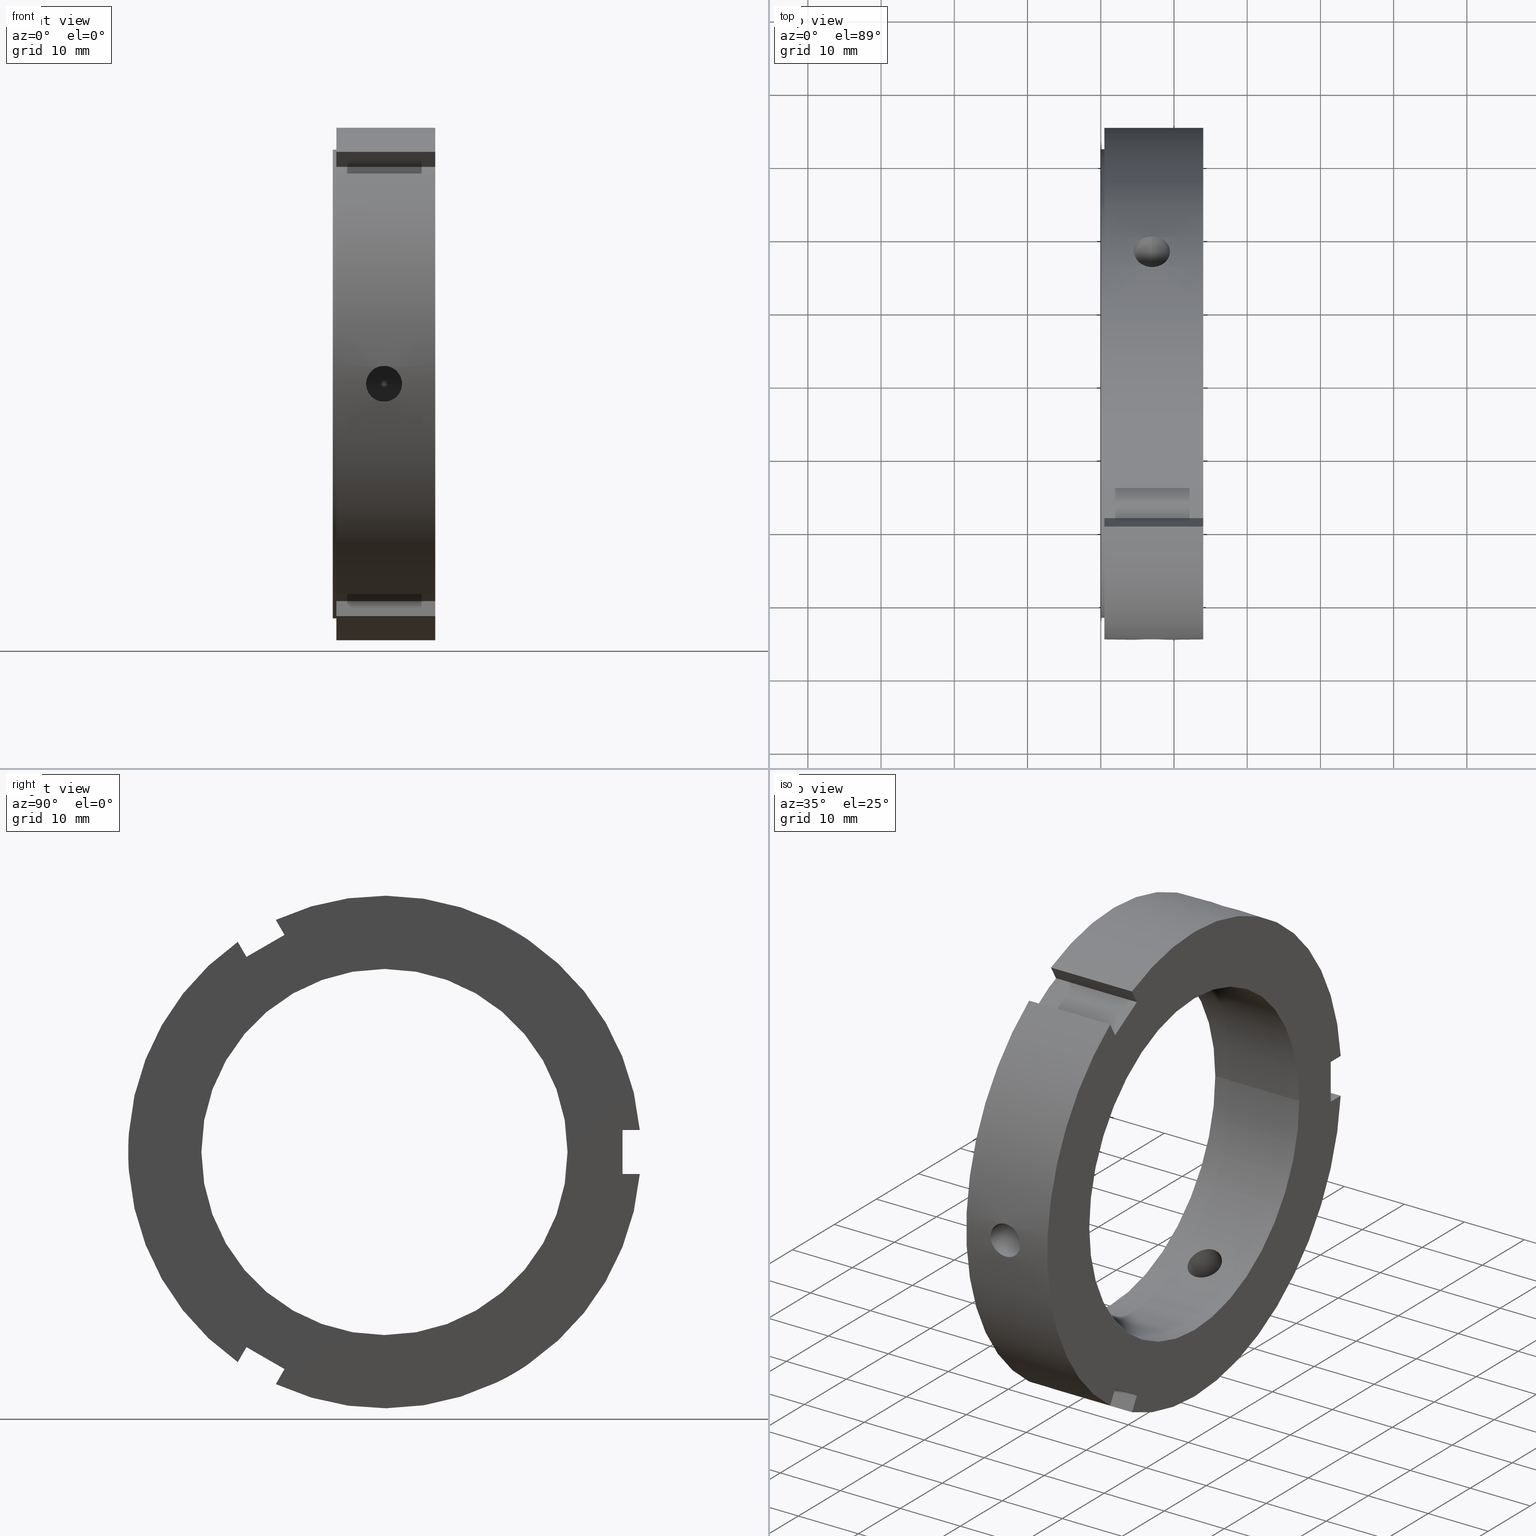
[diagram: canonical four-view strip — front | top / right | iso, engineering-drawing reading convention]
A machine part, canonical four-view strip (front | top / right | iso — engineering-drawing reading convention). The complete STEP part file that produces these views, byte-faithful:
ISO-10303-21;
HEADER;
/****************************************************************
 * Generated by software with PDE/Lib inside                    *
 * PDElib Version v51a, created Thu 01/14/2010                  *
 * ITI Transcendata (http://www.transcendata.com/)              *
 ****************************************************************/
FILE_DESCRIPTION((''),'2;1');
FILE_NAME('\\\\CAD-SVN\\cad-svn\\\X2\628088538AB2\X0\\\FKD\X2\88FD4F5C\X0\SP\\\X2\90E854C130E930A430D630E930EA\X0\\\HP \X2\30A230C330D730C730FC30C87528\X0\CAD\X2\30C730FC30BFFF0867007D42FF09\X0\\\3D data\\ZMT\\FKD ZMT 50.stp','2014-07-16T14:45:56',('fkd-ct1n'),(''),'Autodesk Inventor 2011','Autodesk Inventor 2011','');
FILE_SCHEMA(('AUTOMOTIVE_DESIGN { 1 0 10303 214 1 1 1 1 }'));
ENDSEC;
DATA;
#5=APPLICATION_CONTEXT('automotive design');
#6=APPLICATION_PROTOCOL_DEFINITION('International Standard','automotive_design',2001,#5);
#7=PRODUCT_CONTEXT('',#5,'mechanical');
#8=PRODUCT('FKD ZMT 50','FKD ZMT 50',$,(#7));
#9=PRODUCT_RELATED_PRODUCT_CATEGORY('part',$,(#8));
#10=PRODUCT_DEFINITION_FORMATION('',$,#8);
#11=PRODUCT_DEFINITION_CONTEXT('part definition',#5,'design');
#12=PRODUCT_DEFINITION('',$,#10,#11);
#18=(NAMED_UNIT(*)PLANE_ANGLE_UNIT()SI_UNIT($,.RADIAN.));
#19=DIMENSIONAL_EXPONENTS(0.0,0.0,0.0,0.0,0.0,0.0,0.0);
#20=PLANE_ANGLE_MEASURE_WITH_UNIT(PLANE_ANGLE_MEASURE(0.017453292500000),#18);
#24=(CONVERSION_BASED_UNIT('DEGREE',#20)NAMED_UNIT(#19)PLANE_ANGLE_UNIT());
#28=(NAMED_UNIT(*)SI_UNIT($,.STERADIAN.)SOLID_ANGLE_UNIT());
#32=(LENGTH_UNIT()NAMED_UNIT(*)SI_UNIT(.MILLI.,.METRE.));
#34=UNCERTAINTY_MEASURE_WITH_UNIT(LENGTH_MEASURE(0.010000000000000),#32,'DISTANCE_ACCURACY_VALUE','');
#36=(GEOMETRIC_REPRESENTATION_CONTEXT(3)GLOBAL_UNCERTAINTY_ASSIGNED_CONTEXT((#34))GLOBAL_UNIT_ASSIGNED_CONTEXT((#24,#28,#32))REPRESENTATION_CONTEXT('None','None'));
#37=AXIS2_PLACEMENT_3D('',#38,#39,#40);
#38=CARTESIAN_POINT('',(0.0,0.0,0.0));
#39=DIRECTION('',(0.0,0.0,1.0));
#40=DIRECTION('',(1.0,0.0,0.0));
#41=SHAPE_REPRESENTATION('',(#37),#36);
#42=PRODUCT_DEFINITION_SHAPE('','',#12);
#43=SHAPE_DEFINITION_REPRESENTATION(#42,#41);
#49=(NAMED_UNIT(*)PLANE_ANGLE_UNIT()SI_UNIT($,.RADIAN.));
#50=DIMENSIONAL_EXPONENTS(0.0,0.0,0.0,0.0,0.0,0.0,0.0);
#51=PLANE_ANGLE_MEASURE_WITH_UNIT(PLANE_ANGLE_MEASURE(0.017453292500000),#49);
#55=(CONVERSION_BASED_UNIT('DEGREE',#51)NAMED_UNIT(#50)PLANE_ANGLE_UNIT());
#59=(NAMED_UNIT(*)SI_UNIT($,.STERADIAN.)SOLID_ANGLE_UNIT());
#63=(LENGTH_UNIT()NAMED_UNIT(*)SI_UNIT(.MILLI.,.METRE.));
#65=UNCERTAINTY_MEASURE_WITH_UNIT(LENGTH_MEASURE(0.000001000000000),#63,'DISTANCE_ACCURACY_VALUE','');
#67=(GEOMETRIC_REPRESENTATION_CONTEXT(3)GLOBAL_UNCERTAINTY_ASSIGNED_CONTEXT((#65))GLOBAL_UNIT_ASSIGNED_CONTEXT((#55,#59,#63))REPRESENTATION_CONTEXT('','3D'));
#68=CARTESIAN_POINT('',(13.999999999999995,-18.848076211353334,-26.645825622994252));
#69=DIRECTION('',(0.0,-0.866025403784438,0.500000000000001));
#70=DIRECTION('',(-1.0,0.0,0.0));
#71=AXIS2_PLACEMENT_3D('',#68,#69,#70);
#72=PLANE('',#71);
#73=CARTESIAN_POINT('',(0.499999999999994,-18.848076211353334,-26.645825622994252));
#74=VERTEX_POINT('',#73);
#75=CARTESIAN_POINT('',(0.499999999999994,-20.033671985516026,-28.699337741082989));
#76=VERTEX_POINT('',#75);
#77=CARTESIAN_POINT('',(0.499999999999992,-18.848076211353344,-26.645825622994252));
#78=DIRECTION('',(0.0,-0.500000000000000,-0.866025403784439));
#79=VECTOR('',#78,2.371191548325385);
#80=LINE('',#77,#79);
#81=EDGE_CURVE('',#74,#76,#80,.T.);
#82=ORIENTED_EDGE('',*,*,#81,.F.);
#83=CARTESIAN_POINT('',(13.999999999999995,-18.848076211353334,-26.645825622994252));
#84=VERTEX_POINT('',#83);
#85=CARTESIAN_POINT('',(13.999999999999995,-18.848076211353334,-26.645825622994252));
#86=DIRECTION('',(-1.0,0.0,0.0));
#87=VECTOR('',#86,13.500000000000000);
#88=LINE('',#85,#87);
#89=EDGE_CURVE('',#84,#74,#88,.T.);
#90=ORIENTED_EDGE('',*,*,#89,.F.);
#91=CARTESIAN_POINT('',(13.999999999999995,-20.033671985516023,-28.699337741082989));
#92=VERTEX_POINT('',#91);
#93=CARTESIAN_POINT('',(13.999999999999995,-20.033671985516033,-28.699337741082992));
#94=DIRECTION('',(0.0,0.500000000000001,0.866025403784438));
#95=VECTOR('',#94,2.371191548325382);
#96=LINE('',#93,#95);
#97=EDGE_CURVE('',#92,#84,#96,.T.);
#98=ORIENTED_EDGE('',*,*,#97,.F.);
#99=CARTESIAN_POINT('',(0.499999999999994,-20.033671985516026,-28.699337741082989));
#100=DIRECTION('',(1.0,0.0,0.0));
#101=VECTOR('',#100,13.500000000000000);
#102=LINE('',#99,#101);
#103=EDGE_CURVE('',#76,#92,#102,.T.);
#104=ORIENTED_EDGE('',*,*,#103,.F.);
#105=EDGE_LOOP('',(#82,#90,#98,#104));
#106=FACE_OUTER_BOUND('',#105,.T.);
#107=ADVANCED_FACE('',(#106),#72,.F.);
#108=CARTESIAN_POINT('',(13.999999999999995,-14.901923788646700,-31.810889132455348));
#109=DIRECTION('',(0.0,0.866025403784438,-0.500000000000001));
#110=DIRECTION('',(1.0,0.0,0.0));
#111=AXIS2_PLACEMENT_3D('',#108,#109,#110);
#112=PLANE('',#111);
#113=CARTESIAN_POINT('',(0.499999999999994,-14.837519562809396,-31.699337741082985));
#114=VERTEX_POINT('',#113);
#115=CARTESIAN_POINT('',(0.499999999999994,-13.651923788646702,-29.645825622994252));
#116=VERTEX_POINT('',#115);
#117=CARTESIAN_POINT('',(0.499999999999992,-14.837519562809396,-31.699337741082992));
#118=DIRECTION('',(0.0,0.500000000000001,0.866025403784438));
#119=VECTOR('',#118,2.371191548325378);
#120=LINE('',#117,#119);
#121=EDGE_CURVE('',#114,#116,#120,.T.);
#122=ORIENTED_EDGE('',*,*,#121,.F.);
#123=CARTESIAN_POINT('',(13.999999999999995,-14.837519562809396,-31.699337741082985));
#124=VERTEX_POINT('',#123);
#125=CARTESIAN_POINT('',(13.999999999999995,-14.837519562809391,-31.699337741082985));
#126=DIRECTION('',(-1.0,0.0,0.0));
#127=VECTOR('',#126,13.500000000000000);
#128=LINE('',#125,#127);
#129=EDGE_CURVE('',#124,#114,#128,.T.);
#130=ORIENTED_EDGE('',*,*,#129,.F.);
#131=CARTESIAN_POINT('',(13.999999999999995,-13.651923788646702,-29.645825622994252));
#132=VERTEX_POINT('',#131);
#133=CARTESIAN_POINT('',(13.999999999999995,-13.651923788646709,-29.645825622994259));
#134=DIRECTION('',(0.0,-0.500000000000000,-0.866025403784439));
#135=VECTOR('',#134,2.371191548325377);
#136=LINE('',#133,#135);
#137=EDGE_CURVE('',#132,#124,#136,.T.);
#138=ORIENTED_EDGE('',*,*,#137,.F.);
#139=CARTESIAN_POINT('',(13.999999999999995,-13.651923788646702,-29.645825622994252));
#140=DIRECTION('',(-1.0,0.0,0.0));
#141=VECTOR('',#140,13.500000000000000);
#142=LINE('',#139,#141);
#143=EDGE_CURVE('',#132,#116,#142,.T.);
#144=ORIENTED_EDGE('',*,*,#143,.T.);
#145=EDGE_LOOP('',(#122,#130,#138,#144));
#146=FACE_OUTER_BOUND('',#145,.T.);
#147=ADVANCED_FACE('',(#146),#112,.F.);
#148=CARTESIAN_POINT('',(13.999999999999995,-13.651923788646702,-29.645825622994252));
#149=DIRECTION('',(0.0,0.500000000000001,0.866025403784438));
#150=DIRECTION('',(0.0,-0.866025403784438,0.500000000000000));
#151=AXIS2_PLACEMENT_3D('',#148,#149,#150);
#152=PLANE('',#151);
#153=CARTESIAN_POINT('',(0.499999999999992,-13.651923788646709,-29.645825622994259));
#154=DIRECTION('',(0.0,-0.866025403784438,0.500000000000001));
#155=VECTOR('',#154,6.000000000000007);
#156=LINE('',#153,#155);
#157=EDGE_CURVE('',#116,#74,#156,.T.);
#158=ORIENTED_EDGE('',*,*,#157,.F.);
#159=ORIENTED_EDGE('',*,*,#143,.F.);
#160=CARTESIAN_POINT('',(13.999999999999995,-18.848076211353337,-26.645825622994245));
#161=DIRECTION('',(0.0,0.866025403784438,-0.500000000000001));
#162=VECTOR('',#161,6.0);
#163=LINE('',#160,#162);
#164=EDGE_CURVE('',#84,#132,#163,.T.);
#165=ORIENTED_EDGE('',*,*,#164,.F.);
#166=ORIENTED_EDGE('',*,*,#89,.T.);
#167=EDGE_LOOP('',(#158,#159,#165,#166));
#168=FACE_OUTER_BOUND('',#167,.T.);
#169=ADVANCED_FACE('',(#168),#152,.F.);
#170=CARTESIAN_POINT('',(6.999999999999994,49.944928191916532,86.507153208778519));
#171=DIRECTION('',(0.0,-0.500000000000001,-0.866025403784438));
#172=DIRECTION('',(-1.0,0.0,0.0));
#173=AXIS2_PLACEMENT_3D('',#170,#171,#172);
#174=CYLINDRICAL_SURFACE('',#173,2.458500000000000);
#175=CARTESIAN_POINT('',(6.999999999999994,19.585897052793616,29.006768807252044));
#176=VERTEX_POINT('',#175);
#177=CARTESIAN_POINT('',(6.999999999999994,19.585897052793612,29.006768807252051));
#178=CARTESIAN_POINT('',(7.308803977342721,19.585897052793612,29.006768807252051));
#179=CARTESIAN_POINT('',(7.638121638273501,19.534692012485525,29.041549822606125));
#180=CARTESIAN_POINT('',(8.243815084881787,19.325538974395474,29.181147191928112));
#181=CARTESIAN_POINT('',(8.520199516624384,19.167477861900046,29.285756456822813));
#182=CARTESIAN_POINT('',(8.956644346498578,18.800357879557588,29.522775654680274));
#183=CARTESIAN_POINT('',(9.145834056158357,18.566777503740248,29.670971599935317));
#184=CARTESIAN_POINT('',(9.396764694186135,18.050376288814480,29.987925876739482));
#185=CARTESIAN_POINT('',(9.458499999999994,17.767431868613340,30.156487271121549));
#186=CARTESIAN_POINT('',(9.458499999999994,17.232568131386664,30.465290993789147));
#187=CARTESIAN_POINT('',(9.396764694186130,16.945117471653898,30.626047352351357));
#188=CARTESIAN_POINT('',(9.145834056158348,16.412426408640489,30.914786784620134));
#189=CARTESIAN_POINT('',(8.956644346498578,16.167294767403103,31.042975351275945));
#190=CARTESIAN_POINT('',(8.520199516624388,15.778470129702702,31.242400983292676));
#191=CARTESIAN_POINT('',(8.243815084881785,15.608845292584965,31.326981289616796));
#192=CARTESIAN_POINT('',(7.638121638273500,15.383373905405621,31.438314449220478));
#193=CARTESIAN_POINT('',(7.308803977342721,15.327650142385528,31.465268807252048));
#194=CARTESIAN_POINT('',(6.691196022657268,15.327650142385528,31.465268807252048));
#195=CARTESIAN_POINT('',(6.361878361726489,15.383373905405621,31.438314449220478));
#196=CARTESIAN_POINT('',(5.756184915118203,15.608845292584965,31.326981289616796));
#197=CARTESIAN_POINT('',(5.479800483375601,15.778470129702702,31.242400983292676));
#198=CARTESIAN_POINT('',(5.043355653501410,16.167294767403103,31.042975351275945));
#199=CARTESIAN_POINT('',(4.854165943841641,16.412426408640489,30.914786784620134));
#200=CARTESIAN_POINT('',(4.603235305813859,16.945117471653898,30.626047352351357));
#201=CARTESIAN_POINT('',(4.541499999999995,17.232568131386664,30.465290993789147));
#202=CARTESIAN_POINT('',(4.541499999999993,17.767431868613343,30.156487271121556));
#203=CARTESIAN_POINT('',(4.603235305813854,18.050376288814480,29.987925876739482));
#204=CARTESIAN_POINT('',(4.854165943841634,18.566777503740248,29.670971599935314));
#205=CARTESIAN_POINT('',(5.043355653501407,18.800357879557591,29.522775654680274));
#206=CARTESIAN_POINT('',(5.479800483375604,19.167477861900046,29.285756456822813));
#207=CARTESIAN_POINT('',(5.756184915118205,19.325538974395474,29.181147191928112));
#208=CARTESIAN_POINT('',(6.361878361726491,19.534692012485525,29.041549822606125));
#209=CARTESIAN_POINT('',(6.691196022657268,19.585897052793612,29.006768807252051));
#210=CARTESIAN_POINT('',(6.999999999999993,19.585897052793612,29.006768807252051));
#211=B_SPLINE_CURVE_WITH_KNOTS('',3,(#177,#178,#179,#180,#181,#182,#183,#184,#185,#186,#187,#188,#189,#190,#191,#192,#193,#194,#195,#196,#197,#198,#199,#200,#201,#202,#203,#204,#205,#206,#207,#208,#209,#210),.UNSPECIFIED.,.T.,.U.,(4,2,2,2,2,2,2,2,2,2,2,2,2,2,2,2,4),(0.0,0.092641193202818,0.185282386405636,0.277923503205914,0.370564620006192,0.463205736806469,0.555846853606746,0.648488046809564,0.741129240012382,0.833770433215200,0.926411626418018,1.019052743218295,1.111693860018572,1.204334976818850,1.296976093619128,1.389617286821946,1.482258480024764),.UNSPECIFIED.);
#212=EDGE_CURVE('',#176,#176,#211,.T.);
#213=ORIENTED_EDGE('',*,*,#212,.F.);
#214=EDGE_LOOP('',(#213));
#215=FACE_OUTER_BOUND('',#214,.T.);
#216=CARTESIAN_POINT('',(6.999999999999994,14.568534391317547,20.316441757576492));
#217=VERTEX_POINT('',#216);
#218=CARTESIAN_POINT('',(6.999999999999994,14.568534391317542,20.316441757576499));
#219=CARTESIAN_POINT('',(6.691090431283149,14.568534391317542,20.316441757576499));
#220=CARTESIAN_POINT('',(6.361727701216430,14.518207455927437,20.352826061121981));
#221=CARTESIAN_POINT('',(5.756063616292427,14.312316190844285,20.498133612463860));
#222=CARTESIAN_POINT('',(5.479745178387740,14.156594499062209,20.606762491561817));
#223=CARTESIAN_POINT('',(5.043411472797827,13.793925879390478,20.851269427159327));
#224=CARTESIAN_POINT('',(4.854237550732051,13.562716952188858,21.003441303081626));
#225=CARTESIAN_POINT('',(4.603276304131247,13.049603551336270,21.326033031212393));
#226=CARTESIAN_POINT('',(4.541499999999994,12.767522682632960,21.496180801778486));
#227=CARTESIAN_POINT('',(4.541499999999994,12.232477317367049,21.805089387443424));
#228=CARTESIAN_POINT('',(4.603276304131247,11.944084591307863,21.964304700379028));
#229=CARTESIAN_POINT('',(4.854237550732051,11.408155259269606,22.247378076474217));
#230=CARTESIAN_POINT('',(5.043411472797825,11.160766085378553,22.371524943051412));
#231=CARTESIAN_POINT('',(5.479745178387736,10.767682557913755,22.563351713043815));
#232=CARTESIAN_POINT('',(5.756063616292424,10.595746343139263,22.643896214498401));
#233=CARTESIAN_POINT('',(6.361727701216424,10.366960679773909,22.749549504806787));
#234=CARTESIAN_POINT('',(6.691090431283149,10.310287480909462,22.774941757576499));
#235=CARTESIAN_POINT('',(7.308909568716839,10.310287480909462,22.774941757576499));
#236=CARTESIAN_POINT('',(7.638272298783562,10.366960679773909,22.749549504806787));
#237=CARTESIAN_POINT('',(8.243936383707561,10.595746343139263,22.643896214498401));
#238=CARTESIAN_POINT('',(8.520254821612252,10.767682557913755,22.563351713043815));
#239=CARTESIAN_POINT('',(8.956588527202163,11.160766085378555,22.371524943051412));
#240=CARTESIAN_POINT('',(9.145762449267938,11.408155259269607,22.247378076474217));
#241=CARTESIAN_POINT('',(9.396723695868744,11.944084591307867,21.964304700379028));
#242=CARTESIAN_POINT('',(9.458499999999994,12.232477317367049,21.805089387443424));
#243=CARTESIAN_POINT('',(9.458499999999994,12.767522682632961,21.496180801778490));
#244=CARTESIAN_POINT('',(9.396723695868740,13.049603551336267,21.326033031212390));
#245=CARTESIAN_POINT('',(9.145762449267934,13.562716952188856,21.003441303081622));
#246=CARTESIAN_POINT('',(8.956588527202161,13.793925879390478,20.851269427159327));
#247=CARTESIAN_POINT('',(8.520254821612248,14.156594499062209,20.606762491561817));
#248=CARTESIAN_POINT('',(8.243936383707561,14.312316190844285,20.498133612463860));
#249=CARTESIAN_POINT('',(7.638272298783559,14.518207455927437,20.352826061121981));
#250=CARTESIAN_POINT('',(7.308909568716839,14.568534391317542,20.316441757576492));
#251=CARTESIAN_POINT('',(6.999999999999994,14.568534391317542,20.316441757576492));
#252=B_SPLINE_CURVE_WITH_KNOTS('',3,(#218,#219,#220,#221,#222,#223,#224,#225,#226,#227,#228,#229,#230,#231,#232,#233,#234,#235,#236,#237,#238,#239,#240,#241,#242,#243,#244,#245,#246,#247,#248,#249,#250,#251),.UNSPECIFIED.,.T.,.U.,(4,2,2,2,2,2,2,2,2,2,2,2,2,2,2,2,4),(0.0,0.092672870615054,0.185345741230107,0.278018316929588,0.370690892629069,0.463363468328549,0.556036044028029,0.648708914643083,0.741381785258136,0.834054655873190,0.926727526488244,1.019400102187724,1.112072677887205,1.204745253586685,1.297417829286166,1.390090699901220,1.482763570516273),.UNSPECIFIED.);
#253=EDGE_CURVE('',#217,#217,#252,.T.);
#254=ORIENTED_EDGE('',*,*,#253,.F.);
#255=EDGE_LOOP('',(#254));
#256=FACE_BOUND('',#255,.T.);
#257=ADVANCED_FACE('',(#215,#256),#174,.F.);
#258=CARTESIAN_POINT('',(13.999999999999995,-13.651923788646680,29.645825622994263));
#259=DIRECTION('',(0.0,0.866025403784439,0.500000000000000));
#260=DIRECTION('',(-1.0,0.0,0.0));
#261=AXIS2_PLACEMENT_3D('',#258,#259,#260);
#262=PLANE('',#261);
#263=CARTESIAN_POINT('',(0.499999999999994,-13.651923788646680,29.645825622994263));
#264=VERTEX_POINT('',#263);
#265=CARTESIAN_POINT('',(0.499999999999994,-14.837519562809369,31.699337741082999));
#266=VERTEX_POINT('',#265);
#267=CARTESIAN_POINT('',(0.499999999999993,-13.651923788646680,29.645825622994263));
#268=DIRECTION('',(0.0,-0.500000000000001,0.866025403784438));
#269=VECTOR('',#268,2.371191548325382);
#270=LINE('',#267,#269);
#271=EDGE_CURVE('',#264,#266,#270,.T.);
#272=ORIENTED_EDGE('',*,*,#271,.F.);
#273=CARTESIAN_POINT('',(13.999999999999995,-13.651923788646680,29.645825622994263));
#274=VERTEX_POINT('',#273);
#275=CARTESIAN_POINT('',(13.999999999999995,-13.651923788646680,29.645825622994263));
#276=DIRECTION('',(-1.0,0.0,0.0));
#277=VECTOR('',#276,13.500000000000000);
#278=LINE('',#275,#277);
#279=EDGE_CURVE('',#274,#264,#278,.T.);
#280=ORIENTED_EDGE('',*,*,#279,.F.);
#281=CARTESIAN_POINT('',(13.999999999999995,-14.837519562809371,31.699337741082999));
#282=VERTEX_POINT('',#281);
#283=CARTESIAN_POINT('',(13.999999999999995,-14.837519562809373,31.699337741083010));
#284=DIRECTION('',(0.0,0.499999999999999,-0.866025403784439));
#285=VECTOR('',#284,2.371191548325388);
#286=LINE('',#283,#285);
#287=EDGE_CURVE('',#282,#274,#286,.T.);
#288=ORIENTED_EDGE('',*,*,#287,.F.);
#289=CARTESIAN_POINT('',(0.499999999999994,-14.837519562809369,31.699337741082996));
#290=DIRECTION('',(1.0,0.0,0.0));
#291=VECTOR('',#290,13.500000000000000);
#292=LINE('',#289,#291);
#293=EDGE_CURVE('',#266,#282,#292,.T.);
#294=ORIENTED_EDGE('',*,*,#293,.F.);
#295=EDGE_LOOP('',(#272,#280,#288,#294));
#296=FACE_OUTER_BOUND('',#295,.T.);
#297=ADVANCED_FACE('',(#296),#262,.F.);
#298=CARTESIAN_POINT('',(13.999999999999995,-20.098076211353309,28.810889132455358));
#299=DIRECTION('',(0.0,-0.866025403784439,-0.500000000000000));
#300=DIRECTION('',(1.0,0.0,0.0));
#301=AXIS2_PLACEMENT_3D('',#298,#299,#300);
#302=PLANE('',#301);
#303=CARTESIAN_POINT('',(0.499999999999994,-20.033671985516001,28.699337741083003));
#304=VERTEX_POINT('',#303);
#305=CARTESIAN_POINT('',(0.499999999999994,-18.848076211353309,26.645825622994263));
#306=VERTEX_POINT('',#305);
#307=CARTESIAN_POINT('',(0.499999999999993,-20.033671985516008,28.699337741082999));
#308=DIRECTION('',(0.0,0.500000000000001,-0.866025403784438));
#309=VECTOR('',#308,2.371191548325382);
#310=LINE('',#307,#309);
#311=EDGE_CURVE('',#304,#306,#310,.T.);
#312=ORIENTED_EDGE('',*,*,#311,.F.);
#313=CARTESIAN_POINT('',(13.999999999999995,-20.033671985516001,28.699337741083003));
#314=VERTEX_POINT('',#313);
#315=CARTESIAN_POINT('',(13.999999999999995,-20.033671985516005,28.699337741083003));
#316=DIRECTION('',(-1.0,0.0,0.0));
#317=VECTOR('',#316,13.500000000000000);
#318=LINE('',#315,#317);
#319=EDGE_CURVE('',#314,#304,#318,.T.);
#320=ORIENTED_EDGE('',*,*,#319,.F.);
#321=CARTESIAN_POINT('',(13.999999999999995,-18.848076211353309,26.645825622994263));
#322=VERTEX_POINT('',#321);
#323=CARTESIAN_POINT('',(13.999999999999995,-18.848076211353316,26.645825622994263));
#324=DIRECTION('',(0.0,-0.499999999999999,0.866025403784439));
#325=VECTOR('',#324,2.371191548325388);
#326=LINE('',#323,#325);
#327=EDGE_CURVE('',#322,#314,#326,.T.);
#328=ORIENTED_EDGE('',*,*,#327,.F.);
#329=CARTESIAN_POINT('',(13.999999999999995,-18.848076211353309,26.645825622994263));
#330=DIRECTION('',(-1.0,0.0,0.0));
#331=VECTOR('',#330,13.500000000000000);
#332=LINE('',#329,#331);
#333=EDGE_CURVE('',#322,#306,#332,.T.);
#334=ORIENTED_EDGE('',*,*,#333,.T.);
#335=EDGE_LOOP('',(#312,#320,#328,#334));
#336=FACE_OUTER_BOUND('',#335,.T.);
#337=ADVANCED_FACE('',(#336),#302,.F.);
#338=CARTESIAN_POINT('',(13.999999999999995,-18.848076211353309,26.645825622994263));
#339=DIRECTION('',(0.0,0.500000000000000,-0.866025403784439));
#340=DIRECTION('',(0.0,0.866025403784439,0.500000000000000));
#341=AXIS2_PLACEMENT_3D('',#338,#339,#340);
#342=PLANE('',#341);
#343=CARTESIAN_POINT('',(0.499999999999993,-18.848076211353316,26.645825622994266));
#344=DIRECTION('',(0.0,0.866025403784439,0.500000000000000));
#345=VECTOR('',#344,5.999999999999998);
#346=LINE('',#343,#345);
#347=EDGE_CURVE('',#306,#264,#346,.T.);
#348=ORIENTED_EDGE('',*,*,#347,.F.);
#349=ORIENTED_EDGE('',*,*,#333,.F.);
#350=CARTESIAN_POINT('',(13.999999999999995,-13.651923788646680,29.645825622994259));
#351=DIRECTION('',(0.0,-0.866025403784439,-0.500000000000000));
#352=VECTOR('',#351,5.999999999999998);
#353=LINE('',#350,#352);
#354=EDGE_CURVE('',#274,#322,#353,.T.);
#355=ORIENTED_EDGE('',*,*,#354,.F.);
#356=ORIENTED_EDGE('',*,*,#279,.T.);
#357=EDGE_LOOP('',(#348,#349,#355,#356));
#358=FACE_OUTER_BOUND('',#357,.T.);
#359=ADVANCED_FACE('',(#358),#342,.F.);
#360=CARTESIAN_POINT('',(6.999999999999994,49.944928191916475,-86.507153208778561));
#361=DIRECTION('',(0.0,-0.500000000000000,0.866025403784439));
#362=DIRECTION('',(-1.0,0.0,0.0));
#363=AXIS2_PLACEMENT_3D('',#360,#361,#362);
#364=CYLINDRICAL_SURFACE('',#363,2.458500000000000);
#365=CARTESIAN_POINT('',(6.999999999999994,15.327650142385512,-31.465268807252059));
#366=VERTEX_POINT('',#365);
#367=CARTESIAN_POINT('',(6.999999999999993,15.327650142385510,-31.465268807252059));
#368=CARTESIAN_POINT('',(7.308803977342718,15.327650142385510,-31.465268807252059));
#369=CARTESIAN_POINT('',(7.638121638273498,15.383373905405602,-31.438314449220485));
#370=CARTESIAN_POINT('',(8.243815084881783,15.608845292584945,-31.326981289616803));
#371=CARTESIAN_POINT('',(8.520199516624384,15.778470129702683,-31.242400983292686));
#372=CARTESIAN_POINT('',(8.956644346498578,16.167294767403085,-31.042975351275956));
#373=CARTESIAN_POINT('',(9.145834056158352,16.412426408640471,-30.914786784620141));
#374=CARTESIAN_POINT('',(9.396764694186134,16.945117471653884,-30.626047352351364));
#375=CARTESIAN_POINT('',(9.458499999999994,17.232568131386653,-30.465290993789154));
#376=CARTESIAN_POINT('',(9.458499999999994,17.767431868613333,-30.156487271121559));
#377=CARTESIAN_POINT('',(9.396764694186132,18.050376288814469,-29.987925876739496));
#378=CARTESIAN_POINT('',(9.145834056158350,18.566777503740230,-29.670971599935328));
#379=CARTESIAN_POINT('',(8.956644346498580,18.800357879557581,-29.522775654680288));
#380=CARTESIAN_POINT('',(8.520199516624386,19.167477861900036,-29.285756456822824));
#381=CARTESIAN_POINT('',(8.243815084881783,19.325538974395457,-29.181147191928126));
#382=CARTESIAN_POINT('',(7.638121638273498,19.534692012485507,-29.041549822606139));
#383=CARTESIAN_POINT('',(7.308803977342720,19.585897052793598,-29.006768807252065));
#384=CARTESIAN_POINT('',(6.691196022657269,19.585897052793598,-29.006768807252065));
#385=CARTESIAN_POINT('',(6.361878361726489,19.534692012485507,-29.041549822606139));
#386=CARTESIAN_POINT('',(5.756184915118205,19.325538974395457,-29.181147191928126));
#387=CARTESIAN_POINT('',(5.479800483375604,19.167477861900039,-29.285756456822813));
#388=CARTESIAN_POINT('',(5.043355653501407,18.800357879557584,-29.522775654680281));
#389=CARTESIAN_POINT('',(4.854165943841641,18.566777503740227,-29.670971599935324));
#390=CARTESIAN_POINT('',(4.603235305813857,18.050376288814466,-29.987925876739489));
#391=CARTESIAN_POINT('',(4.541499999999994,17.767431868613333,-30.156487271121559));
#392=CARTESIAN_POINT('',(4.541499999999994,17.232568131386653,-30.465290993789154));
#393=CARTESIAN_POINT('',(4.603235305813854,16.945117471653887,-30.626047352351364));
#394=CARTESIAN_POINT('',(4.854165943841636,16.412426408640474,-30.914786784620141));
#395=CARTESIAN_POINT('',(5.043355653501407,16.167294767403085,-31.042975351275960));
#396=CARTESIAN_POINT('',(5.479800483375602,15.778470129702683,-31.242400983292686));
#397=CARTESIAN_POINT('',(5.756184915118205,15.608845292584945,-31.326981289616803));
#398=CARTESIAN_POINT('',(6.361878361726490,15.383373905405602,-31.438314449220485));
#399=CARTESIAN_POINT('',(6.691196022657268,15.327650142385510,-31.465268807252059));
#400=CARTESIAN_POINT('',(6.999999999999994,15.327650142385510,-31.465268807252059));
#401=B_SPLINE_CURVE_WITH_KNOTS('',3,(#367,#368,#369,#370,#371,#372,#373,#374,#375,#376,#377,#378,#379,#380,#381,#382,#383,#384,#385,#386,#387,#388,#389,#390,#391,#392,#393,#394,#395,#396,#397,#398,#399,#400),.UNSPECIFIED.,.T.,.U.,(4,2,2,2,2,2,2,2,2,2,2,2,2,2,2,2,4),(0.0,0.092641193202818,0.185282386405636,0.277923503205914,0.370564620006191,0.463205736806469,0.555846853606747,0.648488046809564,0.741129240012382,0.833770433215200,0.926411626418017,1.019052743218295,1.111693860018574,1.204334976818851,1.296976093619129,1.389617286821947,1.482258480024765),.UNSPECIFIED.);
#402=EDGE_CURVE('',#366,#366,#401,.T.);
#403=ORIENTED_EDGE('',*,*,#402,.F.);
#404=EDGE_LOOP('',(#403));
#405=FACE_OUTER_BOUND('',#404,.T.);
#406=CARTESIAN_POINT('',(6.999999999999994,10.310287480909446,-22.774941757576499));
#407=VERTEX_POINT('',#406);
#408=CARTESIAN_POINT('',(6.999999999999993,10.310287480909446,-22.774941757576499));
#409=CARTESIAN_POINT('',(6.691090431283148,10.310287480909446,-22.774941757576499));
#410=CARTESIAN_POINT('',(6.361727701216426,10.366960679773896,-22.749549504806797));
#411=CARTESIAN_POINT('',(5.756063616292426,10.595746343139250,-22.643896214498408));
#412=CARTESIAN_POINT('',(5.479745178387738,10.767682557913737,-22.563351713043822));
#413=CARTESIAN_POINT('',(5.043411472797824,11.160766085378537,-22.371524943051423));
#414=CARTESIAN_POINT('',(4.854237550732051,11.408155259269591,-22.247378076474220));
#415=CARTESIAN_POINT('',(4.603276304131247,11.944084591307851,-21.964304700379031));
#416=CARTESIAN_POINT('',(4.541499999999994,12.232477317367039,-21.805089387443431));
#417=CARTESIAN_POINT('',(4.541499999999994,12.767522682632952,-21.496180801778493));
#418=CARTESIAN_POINT('',(4.603276304131249,13.049603551336265,-21.326033031212397));
#419=CARTESIAN_POINT('',(4.854237550732055,13.562716952188850,-21.003441303081630));
#420=CARTESIAN_POINT('',(5.043411472797825,13.793925879390477,-20.851269427159338));
#421=CARTESIAN_POINT('',(5.479745178387740,14.156594499062207,-20.606762491561817));
#422=CARTESIAN_POINT('',(5.756063616292432,14.312316190844276,-20.498133612463864));
#423=CARTESIAN_POINT('',(6.361727701216431,14.518207455927424,-20.352826061121988));
#424=CARTESIAN_POINT('',(6.691090431283149,14.568534391317538,-20.316441757576499));
#425=CARTESIAN_POINT('',(7.308909568716839,14.568534391317538,-20.316441757576499));
#426=CARTESIAN_POINT('',(7.638272298783557,14.518207455927424,-20.352826061121988));
#427=CARTESIAN_POINT('',(8.243936383707556,14.312316190844276,-20.498133612463864));
#428=CARTESIAN_POINT('',(8.520254821612248,14.156594499062207,-20.606762491561817));
#429=CARTESIAN_POINT('',(8.956588527202163,13.793925879390478,-20.851269427159338));
#430=CARTESIAN_POINT('',(9.145762449267933,13.562716952188854,-21.003441303081626));
#431=CARTESIAN_POINT('',(9.396723695868740,13.049603551336267,-21.326033031212393));
#432=CARTESIAN_POINT('',(9.458499999999994,12.767522682632952,-21.496180801778493));
#433=CARTESIAN_POINT('',(9.458499999999994,12.232477317367039,-21.805089387443431));
#434=CARTESIAN_POINT('',(9.396723695868744,11.944084591307856,-21.964304700379028));
#435=CARTESIAN_POINT('',(9.145762449267940,11.408155259269597,-22.247378076474217));
#436=CARTESIAN_POINT('',(8.956588527202163,11.160766085378544,-22.371524943051419));
#437=CARTESIAN_POINT('',(8.520254821612252,10.767682557913748,-22.563351713043822));
#438=CARTESIAN_POINT('',(8.243936383707563,10.595746343139250,-22.643896214498408));
#439=CARTESIAN_POINT('',(7.638272298783564,10.366960679773896,-22.749549504806797));
#440=CARTESIAN_POINT('',(7.308909568716841,10.310287480909446,-22.774941757576499));
#441=CARTESIAN_POINT('',(6.999999999999995,10.310287480909446,-22.774941757576499));
#442=B_SPLINE_CURVE_WITH_KNOTS('',3,(#408,#409,#410,#411,#412,#413,#414,#415,#416,#417,#418,#419,#420,#421,#422,#423,#424,#425,#426,#427,#428,#429,#430,#431,#432,#433,#434,#435,#436,#437,#438,#439,#440,#441),.UNSPECIFIED.,.T.,.U.,(4,2,2,2,2,2,2,2,2,2,2,2,2,2,2,2,4),(0.0,0.092672870615053,0.185345741230107,0.278018316929588,0.370690892629069,0.463363468328550,0.556036044028031,0.648708914643084,0.741381785258137,0.834054655873191,0.926727526488244,1.019400102187725,1.112072677887206,1.204745253586687,1.297417829286167,1.390090699901221,1.482763570516275),.UNSPECIFIED.);
#443=EDGE_CURVE('',#407,#407,#442,.T.);
#444=ORIENTED_EDGE('',*,*,#443,.F.);
#445=EDGE_LOOP('',(#444));
#446=FACE_BOUND('',#445,.T.);
#447=ADVANCED_FACE('',(#405,#446),#364,.F.);
#448=CARTESIAN_POINT('',(13.999999999999995,30.0,0.0));
#449=DIRECTION('',(1.0,0.0,0.0));
#450=DIRECTION('',(0.0,0.0,-1.0));
#451=AXIS2_PLACEMENT_3D('',#448,#449,#450);
#452=PLANE('',#451);
#453=ORIENTED_EDGE('',*,*,#97,.T.);
#454=ORIENTED_EDGE('',*,*,#164,.T.);
#455=ORIENTED_EDGE('',*,*,#137,.T.);
#456=CARTESIAN_POINT('',(13.999999999999995,34.871191548325385,-2.999999999999999));
#457=VERTEX_POINT('',#456);
#458=CARTESIAN_POINT('',(13.999999999999993,0.0,0.0));
#459=DIRECTION('',(1.0,0.0,0.0));
#460=DIRECTION('',(0.0,1.0,0.0));
#461=AXIS2_PLACEMENT_3D('',#458,#459,#460);
#462=CIRCLE('',#461,35.0);
#463=EDGE_CURVE('',#124,#457,#462,.T.);
#464=ORIENTED_EDGE('',*,*,#463,.T.);
#465=CARTESIAN_POINT('',(13.999999999999995,32.500000000000000,-2.999999999999999));
#466=VERTEX_POINT('',#465);
#467=CARTESIAN_POINT('',(13.999999999999995,34.871191548325385,-2.999999999999999));
#468=DIRECTION('',(0.0,-1.0,0.0));
#469=VECTOR('',#468,2.371191548325385);
#470=LINE('',#467,#469);
#471=EDGE_CURVE('',#457,#466,#470,.T.);
#472=ORIENTED_EDGE('',*,*,#471,.T.);
#473=CARTESIAN_POINT('',(13.999999999999995,32.500000000000000,2.999999999999999));
#474=VERTEX_POINT('',#473);
#475=CARTESIAN_POINT('',(13.999999999999995,32.500000000000000,-2.999999999999999));
#476=DIRECTION('',(0.0,0.0,1.0));
#477=VECTOR('',#476,5.999999999999998);
#478=LINE('',#475,#477);
#479=EDGE_CURVE('',#466,#474,#478,.T.);
#480=ORIENTED_EDGE('',*,*,#479,.T.);
#481=CARTESIAN_POINT('',(13.999999999999995,34.871191548325385,2.999999999999999));
#482=VERTEX_POINT('',#481);
#483=CARTESIAN_POINT('',(13.999999999999995,32.500000000000000,2.999999999999999));
#484=DIRECTION('',(0.0,1.0,0.0));
#485=VECTOR('',#484,2.371191548325385);
#486=LINE('',#483,#485);
#487=EDGE_CURVE('',#474,#482,#486,.T.);
#488=ORIENTED_EDGE('',*,*,#487,.T.);
#489=CARTESIAN_POINT('',(13.999999999999993,0.0,0.0));
#490=DIRECTION('',(1.0,0.0,0.0));
#491=DIRECTION('',(0.0,1.0,0.0));
#492=AXIS2_PLACEMENT_3D('',#489,#490,#491);
#493=CIRCLE('',#492,35.0);
#494=EDGE_CURVE('',#482,#282,#493,.T.);
#495=ORIENTED_EDGE('',*,*,#494,.T.);
#496=ORIENTED_EDGE('',*,*,#287,.T.);
#497=ORIENTED_EDGE('',*,*,#354,.T.);
#498=ORIENTED_EDGE('',*,*,#327,.T.);
#499=CARTESIAN_POINT('',(13.999999999999993,0.0,0.0));
#500=DIRECTION('',(1.0,0.0,0.0));
#501=DIRECTION('',(0.0,1.0,0.0));
#502=AXIS2_PLACEMENT_3D('',#499,#500,#501);
#503=CIRCLE('',#502,35.0);
#504=EDGE_CURVE('',#314,#92,#503,.T.);
#505=ORIENTED_EDGE('',*,*,#504,.T.);
#506=EDGE_LOOP('',(#453,#454,#455,#464,#472,#480,#488,#495,#496,#497,#498,#505));
#507=FACE_OUTER_BOUND('',#506,.T.);
#508=CARTESIAN_POINT('',(13.999999999999995,25.0,0.0));
#509=VERTEX_POINT('',#508);
#510=CARTESIAN_POINT('',(13.999999999999995,0.0,0.0));
#511=DIRECTION('',(1.0,0.0,0.0));
#512=DIRECTION('',(0.0,1.0,0.0));
#513=AXIS2_PLACEMENT_3D('',#510,#511,#512);
#514=CIRCLE('',#513,25.0);
#515=EDGE_CURVE('',#509,#509,#514,.T.);
#516=ORIENTED_EDGE('',*,*,#515,.F.);
#517=EDGE_LOOP('',(#516));
#518=FACE_BOUND('',#517,.T.);
#519=ADVANCED_FACE('',(#507,#518),#452,.T.);
#520=CARTESIAN_POINT('',(7.249999999999993,0.0,0.0));
#521=DIRECTION('',(1.0,0.0,0.0));
#522=DIRECTION('',(0.0,1.0,0.0));
#523=AXIS2_PLACEMENT_3D('',#520,#521,#522);
#524=CYLINDRICAL_SURFACE('',#523,35.0);
#525=ORIENTED_EDGE('',*,*,#293,.T.);
#526=ORIENTED_EDGE('',*,*,#494,.F.);
#527=CARTESIAN_POINT('',(0.499999999999994,34.871191548325385,2.999999999999999));
#528=VERTEX_POINT('',#527);
#529=CARTESIAN_POINT('',(13.999999999999995,34.871191548325385,2.999999999999999));
#530=DIRECTION('',(-1.0,0.0,0.0));
#531=VECTOR('',#530,13.500000000000000);
#532=LINE('',#529,#531);
#533=EDGE_CURVE('',#482,#528,#532,.T.);
#534=ORIENTED_EDGE('',*,*,#533,.T.);
#535=CARTESIAN_POINT('',(0.499999999999994,0.0,0.0));
#536=DIRECTION('',(1.0,0.0,0.0));
#537=DIRECTION('',(0.0,1.0,0.0));
#538=AXIS2_PLACEMENT_3D('',#535,#536,#537);
#539=CIRCLE('',#538,34.999999999999993);
#540=EDGE_CURVE('',#528,#266,#539,.T.);
#541=ORIENTED_EDGE('',*,*,#540,.T.);
#542=EDGE_LOOP('',(#525,#526,#534,#541));
#543=FACE_OUTER_BOUND('',#542,.T.);
#544=ORIENTED_EDGE('',*,*,#212,.T.);
#545=EDGE_LOOP('',(#544));
#546=FACE_BOUND('',#545,.T.);
#547=ADVANCED_FACE('',(#543,#546),#524,.T.);
#548=CARTESIAN_POINT('',(7.249999999999993,0.0,0.0));
#549=DIRECTION('',(1.0,0.0,0.0));
#550=DIRECTION('',(0.0,1.0,0.0));
#551=AXIS2_PLACEMENT_3D('',#548,#549,#550);
#552=CYLINDRICAL_SURFACE('',#551,35.0);
#553=ORIENTED_EDGE('',*,*,#129,.T.);
#554=CARTESIAN_POINT('',(0.499999999999994,34.871191548325385,-2.999999999999999));
#555=VERTEX_POINT('',#554);
#556=CARTESIAN_POINT('',(0.499999999999994,0.0,0.0));
#557=DIRECTION('',(1.0,0.0,0.0));
#558=DIRECTION('',(0.0,1.0,0.0));
#559=AXIS2_PLACEMENT_3D('',#556,#557,#558);
#560=CIRCLE('',#559,34.999999999999993);
#561=EDGE_CURVE('',#114,#555,#560,.T.);
#562=ORIENTED_EDGE('',*,*,#561,.T.);
#563=CARTESIAN_POINT('',(0.499999999999994,34.871191548325385,-2.999999999999999));
#564=DIRECTION('',(1.0,0.0,0.0));
#565=VECTOR('',#564,13.500000000000000);
#566=LINE('',#563,#565);
#567=EDGE_CURVE('',#555,#457,#566,.T.);
#568=ORIENTED_EDGE('',*,*,#567,.T.);
#569=ORIENTED_EDGE('',*,*,#463,.F.);
#570=EDGE_LOOP('',(#553,#562,#568,#569));
#571=FACE_OUTER_BOUND('',#570,.T.);
#572=ORIENTED_EDGE('',*,*,#402,.T.);
#573=EDGE_LOOP('',(#572));
#574=FACE_BOUND('',#573,.T.);
#575=ADVANCED_FACE('',(#571,#574),#552,.T.);
#576=CARTESIAN_POINT('',(7.249999999999993,0.0,0.0));
#577=DIRECTION('',(1.0,0.0,0.0));
#578=DIRECTION('',(0.0,1.0,0.0));
#579=AXIS2_PLACEMENT_3D('',#576,#577,#578);
#580=CYLINDRICAL_SURFACE('',#579,35.0);
#581=ORIENTED_EDGE('',*,*,#103,.T.);
#582=ORIENTED_EDGE('',*,*,#504,.F.);
#583=ORIENTED_EDGE('',*,*,#319,.T.);
#584=CARTESIAN_POINT('',(0.499999999999994,0.0,0.0));
#585=DIRECTION('',(1.0,0.0,0.0));
#586=DIRECTION('',(0.0,1.0,0.0));
#587=AXIS2_PLACEMENT_3D('',#584,#585,#586);
#588=CIRCLE('',#587,34.999999999999993);
#589=EDGE_CURVE('',#304,#76,#588,.T.);
#590=ORIENTED_EDGE('',*,*,#589,.T.);
#591=EDGE_LOOP('',(#581,#582,#583,#590));
#592=FACE_OUTER_BOUND('',#591,.T.);
#593=CARTESIAN_POINT('',(6.999999999999994,-34.913547195179120,2.458500000000000));
#594=VERTEX_POINT('',#593);
#595=CARTESIAN_POINT('',(6.999999999999994,-34.913547195179120,2.458500000000000));
#596=CARTESIAN_POINT('',(7.308803977342720,-34.913547195179120,2.458500000000000));
#597=CARTESIAN_POINT('',(7.638121638273500,-34.918065917891127,2.396764626614350));
#598=CARTESIAN_POINT('',(8.243815084881785,-34.934384266980423,2.145834097688679));
#599=CARTESIAN_POINT('',(8.520199516624386,-34.945947991602736,1.956644526469862));
#600=CARTESIAN_POINT('',(8.956644346498578,-34.967652646960680,1.520199696595668));
#601=CARTESIAN_POINT('',(9.145834056158350,-34.979203912380719,1.243815184684811));
#602=CARTESIAN_POINT('',(9.396764694186132,-34.995493760468371,0.638121475611871));
#603=CARTESIAN_POINT('',(9.458499999999994,-35.0,0.308803722667592));
#604=CARTESIAN_POINT('',(9.458499999999994,-35.0,-0.308803722667592));
#605=CARTESIAN_POINT('',(9.396764694186134,-34.995493760468371,-0.638121475611870));
#606=CARTESIAN_POINT('',(9.145834056158352,-34.979203912380719,-1.243815184684810));
#607=CARTESIAN_POINT('',(8.956644346498580,-34.967652646960687,-1.520199696595668));
#608=CARTESIAN_POINT('',(8.520199516624386,-34.945947991602736,-1.956644526469862));
#609=CARTESIAN_POINT('',(8.243815084881785,-34.934384266980423,-2.145834097688679));
#610=CARTESIAN_POINT('',(7.638121638273500,-34.918065917891127,-2.396764626614350));
#611=CARTESIAN_POINT('',(7.308803977342720,-34.913547195179120,-2.458500000000000));
#612=CARTESIAN_POINT('',(6.691196022657269,-34.913547195179120,-2.458500000000000));
#613=CARTESIAN_POINT('',(6.361878361726489,-34.918065917891127,-2.396764626614350));
#614=CARTESIAN_POINT('',(5.756184915118203,-34.934384266980423,-2.145834097688679));
#615=CARTESIAN_POINT('',(5.479800483375602,-34.945947991602736,-1.956644526469862));
#616=CARTESIAN_POINT('',(5.043355653501408,-34.967652646960687,-1.520199696595669));
#617=CARTESIAN_POINT('',(4.854165943841637,-34.979203912380719,-1.243815184684810));
#618=CARTESIAN_POINT('',(4.603235305813855,-34.995493760468371,-0.638121475611870));
#619=CARTESIAN_POINT('',(4.541499999999994,-35.0,-0.308803722667593));
#620=CARTESIAN_POINT('',(4.541499999999994,-35.0,0.308803722667591));
#621=CARTESIAN_POINT('',(4.603235305813855,-34.995493760468371,0.638121475611869));
#622=CARTESIAN_POINT('',(4.854165943841637,-34.979203912380719,1.243815184684809));
#623=CARTESIAN_POINT('',(5.043355653501408,-34.967652646960687,1.520199696595668));
#624=CARTESIAN_POINT('',(5.479800483375602,-34.945947991602736,1.956644526469861));
#625=CARTESIAN_POINT('',(5.756184915118203,-34.934384266980423,2.145834097688679));
#626=CARTESIAN_POINT('',(6.361878361726489,-34.918065917891127,2.396764626614351));
#627=CARTESIAN_POINT('',(6.691196022657269,-34.913547195179120,2.458500000000000));
#628=CARTESIAN_POINT('',(6.999999999999994,-34.913547195179120,2.458500000000000));
#629=B_SPLINE_CURVE_WITH_KNOTS('',3,(#595,#596,#597,#598,#599,#600,#601,#602,#603,#604,#605,#606,#607,#608,#609,#610,#611,#612,#613,#614,#615,#616,#617,#618,#619,#620,#621,#622,#623,#624,#625,#626,#627,#628),.UNSPECIFIED.,.T.,.U.,(4,2,2,2,2,2,2,2,2,2,2,2,2,2,2,2,4),(0.0,0.092641193202818,0.185282386405636,0.277923503205913,0.370564620006191,0.463205736806468,0.555846853606746,0.648488046809564,0.741129240012382,0.833770433215200,0.926411626418017,1.019052743218295,1.111693860018573,1.204334976818850,1.296976093619128,1.389617286821946,1.482258480024764),.UNSPECIFIED.);
#630=EDGE_CURVE('',#594,#594,#629,.T.);
#631=ORIENTED_EDGE('',*,*,#630,.T.);
#632=EDGE_LOOP('',(#631));
#633=FACE_BOUND('',#632,.T.);
#634=ADVANCED_FACE('',(#592,#633),#580,.T.);
#635=CARTESIAN_POINT('',(6.999999999999994,-99.889856383832978,0.0));
#636=DIRECTION('',(0.0,1.0,0.0));
#637=DIRECTION('',(-1.0,0.0,0.0));
#638=AXIS2_PLACEMENT_3D('',#635,#636,#637);
#639=CYLINDRICAL_SURFACE('',#638,2.458500000000000);
#640=ORIENTED_EDGE('',*,*,#630,.F.);
#641=EDGE_LOOP('',(#640));
#642=FACE_OUTER_BOUND('',#641,.T.);
#643=CARTESIAN_POINT('',(6.999999999999994,-24.878821872226986,2.458500000000000));
#644=VERTEX_POINT('',#643);
#645=CARTESIAN_POINT('',(6.999999999999994,-24.878821872226990,2.458500000000000));
#646=CARTESIAN_POINT('',(6.691090431283149,-24.878821872226990,2.458500000000000));
#647=CARTESIAN_POINT('',(6.361727701216424,-24.885168135701331,2.396723443684805));
#648=CARTESIAN_POINT('',(5.756063616292424,-24.908062533983536,2.145762602034542));
#649=CARTESIAN_POINT('',(5.479745178387738,-24.924277056975953,1.956589221481998));
#650=CARTESIAN_POINT('',(5.043411472797825,-24.954691964769019,1.520255515892086));
#651=CARTESIAN_POINT('',(4.854237550732051,-24.970872211458456,1.243936773392586));
#652=CARTESIAN_POINT('',(4.603276304131247,-24.993688142644125,0.638271669166636));
#653=CARTESIAN_POINT('',(4.541499999999994,-25.0,0.308908585664936));
#654=CARTESIAN_POINT('',(4.541499999999994,-25.0,-0.308908585664936));
#655=CARTESIAN_POINT('',(4.603276304131247,-24.993688142644125,-0.638271669166636));
#656=CARTESIAN_POINT('',(4.854237550732051,-24.970872211458456,-1.243936773392586));
#657=CARTESIAN_POINT('',(5.043411472797825,-24.954691964769019,-1.520255515892086));
#658=CARTESIAN_POINT('',(5.479745178387738,-24.924277056975953,-1.956589221481998));
#659=CARTESIAN_POINT('',(5.756063616292424,-24.908062533983536,-2.145762602034542));
#660=CARTESIAN_POINT('',(6.361727701216424,-24.885168135701331,-2.396723443684805));
#661=CARTESIAN_POINT('',(6.691090431283149,-24.878821872226990,-2.458500000000000));
#662=CARTESIAN_POINT('',(7.308909568716839,-24.878821872226990,-2.458500000000000));
#663=CARTESIAN_POINT('',(7.638272298783564,-24.885168135701331,-2.396723443684805));
#664=CARTESIAN_POINT('',(8.243936383707563,-24.908062533983536,-2.145762602034542));
#665=CARTESIAN_POINT('',(8.520254821612250,-24.924277056975953,-1.956589221481998));
#666=CARTESIAN_POINT('',(8.956588527202163,-24.954691964769019,-1.520255515892085));
#667=CARTESIAN_POINT('',(9.145762449267936,-24.970872211458456,-1.243936773392585));
#668=CARTESIAN_POINT('',(9.396723695868740,-24.993688142644125,-0.638271669166635));
#669=CARTESIAN_POINT('',(9.458499999999994,-25.0,-0.308908585664936));
#670=CARTESIAN_POINT('',(9.458499999999994,-25.0,0.308908585664935));
#671=CARTESIAN_POINT('',(9.396723695868742,-24.993688142644125,0.638271669166635));
#672=CARTESIAN_POINT('',(9.145762449267936,-24.970872211458456,1.243936773392586));
#673=CARTESIAN_POINT('',(8.956588527202163,-24.954691964769019,1.520255515892086));
#674=CARTESIAN_POINT('',(8.520254821612250,-24.924277056975953,1.956589221481998));
#675=CARTESIAN_POINT('',(8.243936383707563,-24.908062533983536,2.145762602034542));
#676=CARTESIAN_POINT('',(7.638272298783564,-24.885168135701331,2.396723443684805));
#677=CARTESIAN_POINT('',(7.308909568716841,-24.878821872226990,2.458500000000000));
#678=CARTESIAN_POINT('',(6.999999999999995,-24.878821872226990,2.458500000000000));
#679=B_SPLINE_CURVE_WITH_KNOTS('',3,(#645,#646,#647,#648,#649,#650,#651,#652,#653,#654,#655,#656,#657,#658,#659,#660,#661,#662,#663,#664,#665,#666,#667,#668,#669,#670,#671,#672,#673,#674,#675,#676,#677,#678),.UNSPECIFIED.,.T.,.U.,(4,2,2,2,2,2,2,2,2,2,2,2,2,2,2,2,4),(0.0,0.092672870615053,0.185345741230107,0.278018316929588,0.370690892629068,0.463363468328549,0.556036044028030,0.648708914643083,0.741381785258136,0.834054655873190,0.926727526488243,1.019400102187724,1.112072677887205,1.204745253586685,1.297417829286166,1.390090699901220,1.482763570516273),.UNSPECIFIED.);
#680=EDGE_CURVE('',#644,#644,#679,.T.);
#681=ORIENTED_EDGE('',*,*,#680,.F.);
#682=EDGE_LOOP('',(#681));
#683=FACE_BOUND('',#682,.T.);
#684=ADVANCED_FACE('',(#642,#683),#639,.F.);
#685=CARTESIAN_POINT('',(13.999999999999995,32.500000000000000,-2.999999999999999));
#686=DIRECTION('',(0.0,0.0,-1.0));
#687=DIRECTION('',(-1.0,0.0,0.0));
#688=AXIS2_PLACEMENT_3D('',#685,#686,#687);
#689=PLANE('',#688);
#690=CARTESIAN_POINT('',(0.499999999999994,32.500000000000000,-2.999999999999999));
#691=VERTEX_POINT('',#690);
#692=CARTESIAN_POINT('',(0.499999999999993,32.500000000000000,-2.999999999999999));
#693=DIRECTION('',(0.0,1.0,0.0));
#694=VECTOR('',#693,2.371191548325385);
#695=LINE('',#692,#694);
#696=EDGE_CURVE('',#691,#555,#695,.T.);
#697=ORIENTED_EDGE('',*,*,#696,.F.);
#698=CARTESIAN_POINT('',(13.999999999999995,32.500000000000000,-2.999999999999999));
#699=DIRECTION('',(-1.0,0.0,0.0));
#700=VECTOR('',#699,13.500000000000000);
#701=LINE('',#698,#700);
#702=EDGE_CURVE('',#466,#691,#701,.T.);
#703=ORIENTED_EDGE('',*,*,#702,.F.);
#704=ORIENTED_EDGE('',*,*,#471,.F.);
#705=ORIENTED_EDGE('',*,*,#567,.F.);
#706=EDGE_LOOP('',(#697,#703,#704,#705));
#707=FACE_OUTER_BOUND('',#706,.T.);
#708=ADVANCED_FACE('',(#707),#689,.F.);
#709=CARTESIAN_POINT('',(13.999999999999995,35.0,2.999999999999999));
#710=DIRECTION('',(0.0,0.0,1.0));
#711=DIRECTION('',(1.0,0.0,0.0));
#712=AXIS2_PLACEMENT_3D('',#709,#710,#711);
#713=PLANE('',#712);
#714=CARTESIAN_POINT('',(0.499999999999994,32.500000000000000,2.999999999999999));
#715=VERTEX_POINT('',#714);
#716=CARTESIAN_POINT('',(0.499999999999993,34.871191548325385,2.999999999999999));
#717=DIRECTION('',(0.0,-1.0,0.0));
#718=VECTOR('',#717,2.371191548325385);
#719=LINE('',#716,#718);
#720=EDGE_CURVE('',#528,#715,#719,.T.);
#721=ORIENTED_EDGE('',*,*,#720,.F.);
#722=ORIENTED_EDGE('',*,*,#533,.F.);
#723=ORIENTED_EDGE('',*,*,#487,.F.);
#724=CARTESIAN_POINT('',(13.999999999999995,32.500000000000000,2.999999999999999));
#725=DIRECTION('',(-1.0,0.0,0.0));
#726=VECTOR('',#725,13.500000000000000);
#727=LINE('',#724,#726);
#728=EDGE_CURVE('',#474,#715,#727,.T.);
#729=ORIENTED_EDGE('',*,*,#728,.T.);
#730=EDGE_LOOP('',(#721,#722,#723,#729));
#731=FACE_OUTER_BOUND('',#730,.T.);
#732=ADVANCED_FACE('',(#731),#713,.F.);
#733=CARTESIAN_POINT('',(13.999999999999995,32.500000000000000,2.999999999999999));
#734=DIRECTION('',(0.0,-1.0,0.0));
#735=DIRECTION('',(0.0,0.0,-1.0));
#736=AXIS2_PLACEMENT_3D('',#733,#734,#735);
#737=PLANE('',#736);
#738=CARTESIAN_POINT('',(0.499999999999993,32.500000000000000,2.999999999999999));
#739=DIRECTION('',(0.0,0.0,-1.0));
#740=VECTOR('',#739,5.999999999999998);
#741=LINE('',#738,#740);
#742=EDGE_CURVE('',#715,#691,#741,.T.);
#743=ORIENTED_EDGE('',*,*,#742,.F.);
#744=ORIENTED_EDGE('',*,*,#728,.F.);
#745=ORIENTED_EDGE('',*,*,#479,.F.);
#746=ORIENTED_EDGE('',*,*,#702,.T.);
#747=EDGE_LOOP('',(#743,#744,#745,#746));
#748=FACE_OUTER_BOUND('',#747,.T.);
#749=ADVANCED_FACE('',(#748),#737,.F.);
#750=CARTESIAN_POINT('',(-7.820976E-015,28.500000000000000,0.0));
#751=DIRECTION('',(-1.0,0.0,0.0));
#752=DIRECTION('',(0.0,0.0,1.0));
#753=AXIS2_PLACEMENT_3D('',#750,#751,#752);
#754=PLANE('',#753);
#755=CARTESIAN_POINT('',(-8.881784E-015,32.0,0.0));
#756=VERTEX_POINT('',#755);
#757=CARTESIAN_POINT('',(-8.881784E-015,0.0,0.0));
#758=DIRECTION('',(1.0,0.0,0.0));
#759=DIRECTION('',(0.0,1.0,0.0));
#760=AXIS2_PLACEMENT_3D('',#757,#758,#759);
#761=CIRCLE('',#760,32.0);
#762=EDGE_CURVE('',#756,#756,#761,.T.);
#763=ORIENTED_EDGE('',*,*,#762,.F.);
#764=EDGE_LOOP('',(#763));
#765=FACE_OUTER_BOUND('',#764,.T.);
#766=CARTESIAN_POINT('',(-6.760167E-015,25.0,0.0));
#767=VERTEX_POINT('',#766);
#768=CARTESIAN_POINT('',(-6.761085E-015,0.0,0.0));
#769=DIRECTION('',(1.0,0.0,0.0));
#770=DIRECTION('',(0.0,1.0,0.0));
#771=AXIS2_PLACEMENT_3D('',#768,#769,#770);
#772=CIRCLE('',#771,25.0);
#773=EDGE_CURVE('',#767,#767,#772,.T.);
#774=ORIENTED_EDGE('',*,*,#773,.T.);
#775=EDGE_LOOP('',(#774));
#776=FACE_BOUND('',#775,.T.);
#777=ADVANCED_FACE('',(#765,#776),#754,.T.);
#778=CARTESIAN_POINT('',(0.249999999999991,0.0,0.0));
#779=DIRECTION('',(1.0,0.0,0.0));
#780=DIRECTION('',(0.0,1.0,0.0));
#781=AXIS2_PLACEMENT_3D('',#778,#779,#780);
#782=CYLINDRICAL_SURFACE('',#781,32.0);
#783=CARTESIAN_POINT('',(0.499999999999992,32.0,0.0));
#784=VERTEX_POINT('',#783);
#785=CARTESIAN_POINT('',(0.499999999999992,0.0,0.0));
#786=DIRECTION('',(1.0,0.0,0.0));
#787=DIRECTION('',(0.0,1.0,0.0));
#788=AXIS2_PLACEMENT_3D('',#785,#786,#787);
#789=CIRCLE('',#788,32.0);
#790=EDGE_CURVE('',#784,#784,#789,.T.);
#791=ORIENTED_EDGE('',*,*,#790,.F.);
#792=EDGE_LOOP('',(#791));
#793=FACE_OUTER_BOUND('',#792,.T.);
#794=ORIENTED_EDGE('',*,*,#762,.T.);
#795=EDGE_LOOP('',(#794));
#796=FACE_BOUND('',#795,.T.);
#797=ADVANCED_FACE('',(#793,#796),#782,.T.);
#798=CARTESIAN_POINT('',(0.499999999999993,33.500000000000000,0.0));
#799=DIRECTION('',(-1.0,0.0,0.0));
#800=DIRECTION('',(0.0,0.0,1.0));
#801=AXIS2_PLACEMENT_3D('',#798,#799,#800);
#802=PLANE('',#801);
#803=ORIENTED_EDGE('',*,*,#81,.T.);
#804=ORIENTED_EDGE('',*,*,#589,.F.);
#805=ORIENTED_EDGE('',*,*,#311,.T.);
#806=ORIENTED_EDGE('',*,*,#347,.T.);
#807=ORIENTED_EDGE('',*,*,#271,.T.);
#808=ORIENTED_EDGE('',*,*,#540,.F.);
#809=ORIENTED_EDGE('',*,*,#720,.T.);
#810=ORIENTED_EDGE('',*,*,#742,.T.);
#811=ORIENTED_EDGE('',*,*,#696,.T.);
#812=ORIENTED_EDGE('',*,*,#561,.F.);
#813=ORIENTED_EDGE('',*,*,#121,.T.);
#814=ORIENTED_EDGE('',*,*,#157,.T.);
#815=EDGE_LOOP('',(#803,#804,#805,#806,#807,#808,#809,#810,#811,#812,#813,#814));
#816=FACE_OUTER_BOUND('',#815,.T.);
#817=ORIENTED_EDGE('',*,*,#790,.T.);
#818=EDGE_LOOP('',(#817));
#819=FACE_BOUND('',#818,.T.);
#820=ADVANCED_FACE('',(#816,#819),#802,.T.);
#821=CARTESIAN_POINT('',(6.999999999999994,0.0,0.0));
#822=DIRECTION('',(1.0,0.0,0.0));
#823=DIRECTION('',(0.0,1.0,0.0));
#824=AXIS2_PLACEMENT_3D('',#821,#822,#823);
#825=CYLINDRICAL_SURFACE('',#824,25.0);
#826=ORIENTED_EDGE('',*,*,#773,.F.);
#827=EDGE_LOOP('',(#826));
#828=FACE_OUTER_BOUND('',#827,.T.);
#829=ORIENTED_EDGE('',*,*,#253,.T.);
#830=EDGE_LOOP('',(#829));
#831=FACE_BOUND('',#830,.T.);
#832=ORIENTED_EDGE('',*,*,#443,.T.);
#833=EDGE_LOOP('',(#832));
#834=FACE_BOUND('',#833,.T.);
#835=ORIENTED_EDGE('',*,*,#680,.T.);
#836=EDGE_LOOP('',(#835));
#837=FACE_BOUND('',#836,.T.);
#838=ORIENTED_EDGE('',*,*,#515,.T.);
#839=EDGE_LOOP('',(#838));
#840=FACE_BOUND('',#839,.T.);
#841=ADVANCED_FACE('',(#828,#831,#834,#837,#840),#825,.F.);
#842=CLOSED_SHELL('',(#107,#147,#169,#257,#297,#337,#359,#447,#519,#547,#575,#634,#684,#708,#732,#749,#777,#797,#820,#841));
#843=MANIFOLD_SOLID_BREP('\X2\30BD30EA30C330C9\X0\1',#842);
#844=COLOUR_RGB('',0.321568995714188,0.321568995714188,0.321568995714188);
#845=FILL_AREA_STYLE_COLOUR('',#844);
#846=FILL_AREA_STYLE('',(#845));
#847=SURFACE_STYLE_FILL_AREA(#846);
#848=SURFACE_SIDE_STYLE('',(#847));
#849=SURFACE_STYLE_USAGE(.BOTH.,#848);
#850=PRESENTATION_STYLE_ASSIGNMENT((#849));
#851=STYLED_ITEM('',(#850),#107);
#852=STYLED_ITEM('',(#850),#147);
#853=STYLED_ITEM('',(#850),#169);
#854=STYLED_ITEM('',(#850),#297);
#855=STYLED_ITEM('',(#850),#337);
#856=STYLED_ITEM('',(#850),#359);
#857=STYLED_ITEM('',(#850),#519);
#858=STYLED_ITEM('',(#850),#547);
#859=STYLED_ITEM('',(#850),#575);
#860=STYLED_ITEM('',(#850),#634);
#861=STYLED_ITEM('',(#850),#708);
#862=STYLED_ITEM('',(#850),#732);
#863=STYLED_ITEM('',(#850),#749);
#864=STYLED_ITEM('',(#850),#797);
#865=STYLED_ITEM('',(#850),#820);
#866=MECHANICAL_DESIGN_GEOMETRIC_PRESENTATION_REPRESENTATION('',(#851,#852,#853,#854,#855,#856,#857,#858,#859,#860,#861,#862,#863,#864,#865,#874),#67);
#867=COLOUR_RGB('Metal-Steel',0.639216005802155,0.639216005802155,0.686275005340576);
#868=FILL_AREA_STYLE_COLOUR('Metal-Steel',#867);
#869=FILL_AREA_STYLE('Metal-Steel',(#868));
#870=SURFACE_STYLE_FILL_AREA(#869);
#871=SURFACE_SIDE_STYLE('Metal-Steel',(#870));
#872=SURFACE_STYLE_USAGE(.BOTH.,#871);
#873=PRESENTATION_STYLE_ASSIGNMENT((#872));
#874=STYLED_ITEM('',(#873),#843);
#875=ADVANCED_BREP_SHAPE_REPRESENTATION('ABSR',(#843),#36);
#876=SHAPE_REPRESENTATION_RELATIONSHIP('SRR','None',#875,#41);
ENDSEC;
END-ISO-10303-21;
